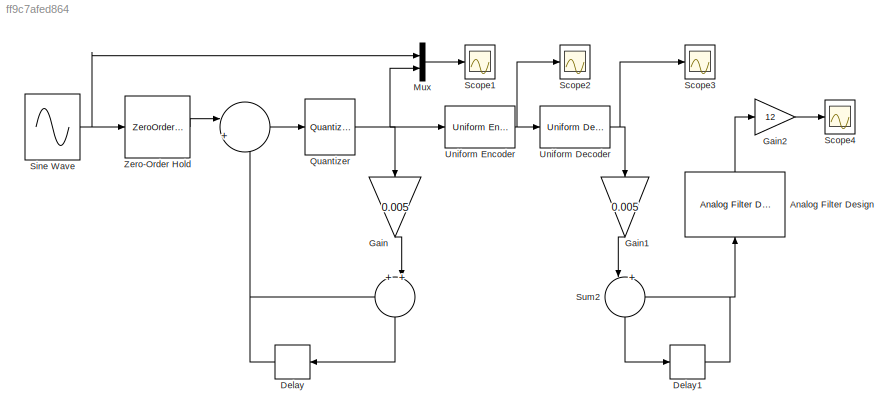
MODEL slx_ff9c7afed864
KIND model
CONFIG AbsTol = auto
CONFIG EnableMultiTasking = off
CONFIG FixedStep = auto
CONFIG MaxStep = auto
CONFIG MinStep = auto
CONFIG RelTol = 1e-3
CONFIG SampleTimeConstraint = Unconstrained
CONFIG SolverName = VariableStepAuto
CONFIG StartTime = 0.0
CONFIG StopTime = 2
BLOCK [Sum]  
  Inputs = ++|
  NameLocation = left
BLOCK [Sum]      Sum2
  Inputs = |++
  NameLocation = left
BLOCK [Reference] Analog Filter Design  REF=dspfdesign/Analog
Filter Design
  NameLocation = right
  SourceBlock = dspfdesign/Analog\nFilter Design
  SourceType = Analog Filter Design
BLOCK [Delay] Delay
  DelayLength = 1
  InitialCondition = 0
  InputPortMap = u0
BLOCK [Delay] Delay1
  DelayLength = 1
  InitialCondition = 0
  InputPortMap = u0
BLOCK [Gain] Gain
  Gain = 0.005
  NameLocation = left
BLOCK [Gain] Gain1
  Gain = 0.005
  NameLocation = left
BLOCK [Gain] Gain2
  Gain = 12
BLOCK [Mux] Mux
  DisplayOption = bar
  Inputs = 2
BLOCK [Quantizer] Quantizer
BLOCK [Scope] Scope1
  Floating = off
  NumInputPorts = 1
  ScopeSpecificationString = Simulink.scopes.TimeScopeBlockCfg('CurrentConfiguration', extmgr.ConfigurationSet(extmgr.Configuration('Core','General UI',true,'FigureColor',[1 1 1]),extmgr.Configuration('Core','Source UI',true),extmgr.Configuration('Sources','WiredSimulink',true,'DataLoggingVariableName','ScopeData1'),extmgr.Configuration('Visuals','Time Domain',true,'SerializedDisplays',{struct('MinYLimReal','-2.5','MaxYLimRea...<+2173ch>
BLOCK [Scope] Scope2 
  Floating = off
  NumInputPorts = 1
  ScopeSpecificationString = Simulink.scopes.TimeScopeBlockCfg('CurrentConfiguration', extmgr.ConfigurationSet(extmgr.Configuration('Core','General UI',true,'FigureColor',[1 1 1]),extmgr.Configuration('Core','Source UI',true),extmgr.Configuration('Sources','WiredSimulink',true,'DataLoggingVariableName','ScopeData1'),extmgr.Configuration('Visuals','Time Domain',true,'SerializedDisplays',{struct('MinYLimReal','-159.875','MaxYLi...<+1919ch>
BLOCK [Scope] Scope3 
  Floating = off
  NumInputPorts = 1
  ScopeSpecificationString = Simulink.scopes.TimeScopeBlockCfg('CurrentConfiguration', extmgr.ConfigurationSet(extmgr.Configuration('Core','General UI',true,'FigureColor',[0.513725490196078 0.380392156862745 0.482352941176471]),extmgr.Configuration('Core','Source UI',true),extmgr.Configuration('Sources','WiredSimulink',true,'DataLoggingVariableName','ScopeData2'),extmgr.Configuration('Visuals','Time Domain',true,'SerializedDi...<+2123ch>
BLOCK [Scope] Scope4 
  Floating = off
  NumInputPorts = 1
  ScopeSpecificationString = Simulink.scopes.TimeScopeBlockCfg('CurrentConfiguration', extmgr.ConfigurationSet(extmgr.Configuration('Core','General UI',true,'FigureColor',[1 1 1]),extmgr.Configuration('Core','Source UI',true),extmgr.Configuration('Sources','WiredSimulink',true,'DataLoggingVariableName','ScopeData1'),extmgr.Configuration('Visuals','Time Domain',true,'SerializedDisplays',{struct('MinYLimReal','-2.04978','MaxYLi...<+2156ch>
BLOCK [Sin] Sine Wave
  Frequency = 2 *pi* 60
  SampleTime = 0
  Samples = 1000
BLOCK [Reference] Uniform Decoder  REF=dspquant2/Uniform
Decoder
  SourceBlock = dspquant2/Uniform\nDecoder
  SourceType = Uniform Decoder
BLOCK [Reference] Uniform Encoder  REF=dspquant2/Uniform
Encoder
  SourceBlock = dspquant2/Uniform\nEncoder
  SourceType = Uniform Encoder
BLOCK [ZeroOrderHold] Zero-Order Hold
  SampleTime = 1/10000
LINE      Sum2:1 -> Delay1:1
NET  :1 -> Delay:1, Quantizer:1
LINE Analog Filter Design:1 -> Gain2:1
NET Delay1:1 ->      Sum2:2, Analog Filter Design:1
NET Delay:1 ->  :1,  :2
LINE Gain1:1 ->      Sum2:1
LINE Gain2:1 -> Scope4 :1
LINE Gain:1 ->  :2
LINE Mux:1 -> Scope1:1
NET Quantizer:1 -> Gain:1, Mux:2, Uniform Encoder:1
NET Sine Wave:1 -> Mux:1, Zero-Order Hold:1
NET Uniform Decoder:1 -> Gain1:1, Scope3 :1
NET Uniform Encoder:1 -> Scope2 :1, Uniform Decoder:1
LINE Zero-Order Hold:1 ->  :1
note: NET lines group one-source signal fan-out (src -> all destinations, sorted); 1:1 wires keep LINE
